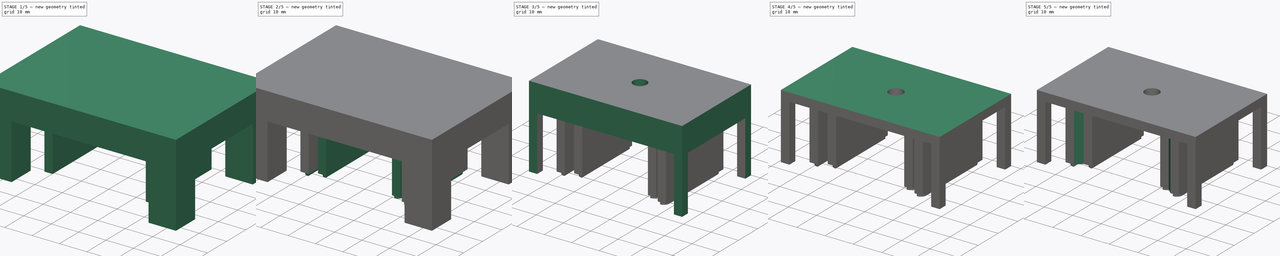
[diagram: build sequence overview — one tinted view per stage of 5, left to right]
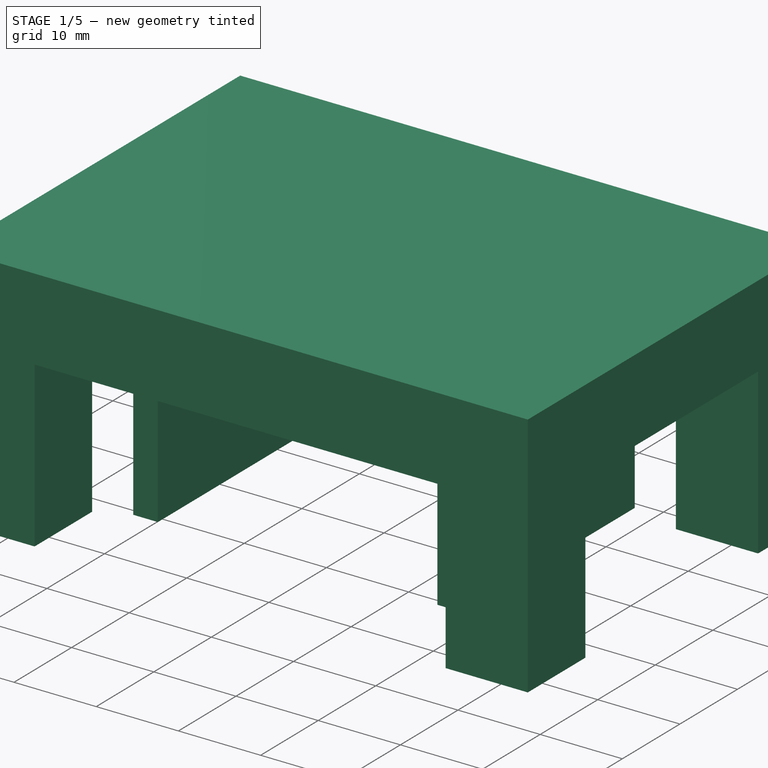
[diagram: stage 1 of 5 — iso view after this stage's code; geometry added in this stage tinted green]
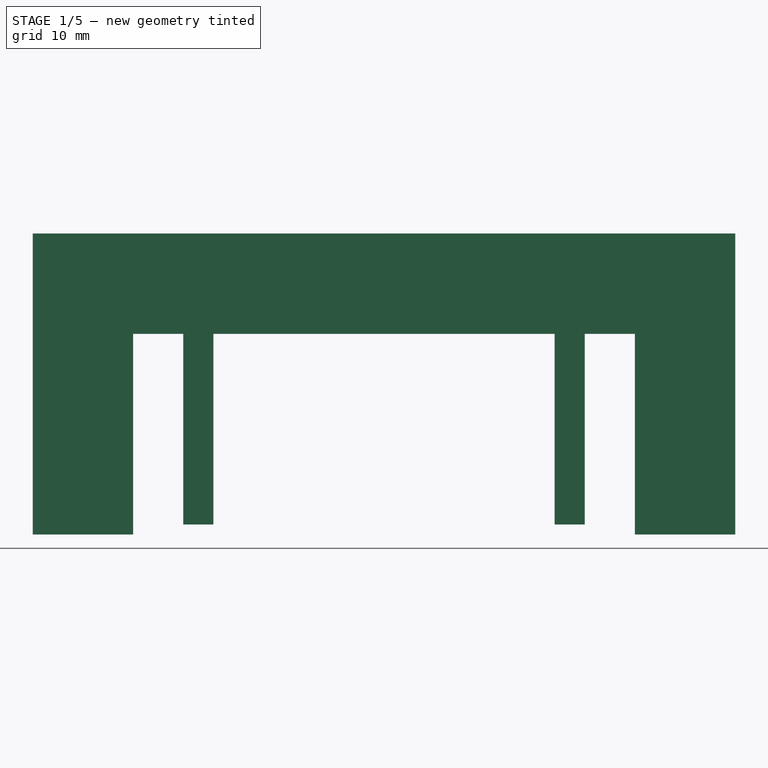
[diagram: stage 1 of 5 — front view after this stage's code; geometry added in this stage tinted green]
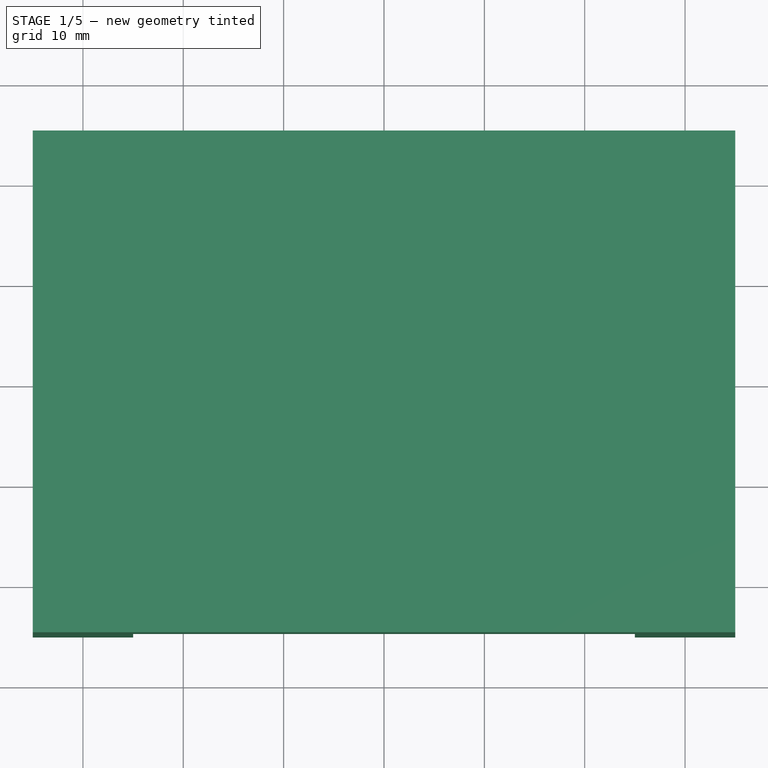
[diagram: stage 1 of 5 — top view after this stage's code; geometry added in this stage tinted green]
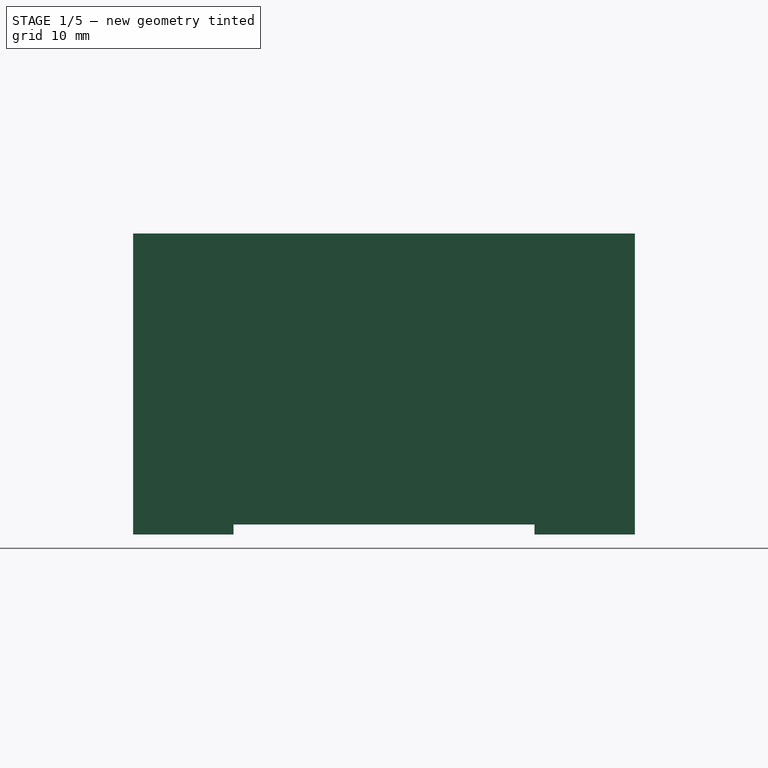
[diagram: stage 1 of 5 — right view after this stage's code; geometry added in this stage tinted green]
FCSTD DOCUMENT  (FreeCAD 0.19R)
Label: internal-flooding-sensor
License: All rights reserved
LicenseURL: http://en.wikipedia.org/wiki/All_rights_reserved
objects: Sketcher::SketchObject×15, PartDesign::Pad×6, PartDesign::Pocket×5, PartDesign::Fillet×2, PartDesign::Body×2, PartDesign::Revolution×1, Part::Loft×1, Part::Fuse×1, PartDesign::FeatureBase×1
note: 48 computed .brp shape members not serialized (recipe doc carries the construction recipe); baked Part::Feature solids carry a one-line shape summary decoded from their .brp

FEATURE [Sketcher::SketchObject] Sketch
  FullyConstrained = true
  MapMode = 5
  Support = -> [XY_Plane]
  sketch-geometry (4):
    g0: LineSegment StartX=-35 StartY=25 StartZ=0 EndX=35 EndY=25 EndZ=0
    g1: LineSegment StartX=35 StartY=25 StartZ=0 EndX=35 EndY=-25 EndZ=0
    g2: LineSegment StartX=35 StartY=-25 StartZ=0 EndX=-35 EndY=-25 EndZ=0
    g3: LineSegment StartX=-35 StartY=-25 StartZ=0 EndX=-35 EndY=25 EndZ=0
  constraints (11):
    c: Coincident(g0,g1)
    c: Coincident(g1,g2)
    c: Coincident(g2,g3)
    c: Coincident(g3,g0)
    c: Horizontal(g0)
    c: Horizontal(g2)
    c: Vertical(g1)
    c: Vertical(g3)
    c: Symmetric(g0,g1,g-1)
    c: DistanceY(g1,g1) = 50
    c: DistanceX(g0,g0) = 70
FEATURE [PartDesign::Pad] Pad
  Direction = (1,1,1)
  Length = 30
  Length2 = 100
  Profile = -> Sketch
  Type = 0
FEATURE [Sketcher::SketchObject] Sketch001
  ExternalGeometry = -> [Pad]
  FullyConstrained = true
  MapMode = 5
  Placement = pos=(0,0,0) rot=(1,0,0;3.14159rad)
  Support = -> [Pad]
  sketch-geometry (12):
    g0: LineSegment StartX=-35 StartY=15 StartZ=0 EndX=-25 EndY=15 EndZ=0
    g1: LineSegment StartX=-25 StartY=15 StartZ=0 EndX=-25 EndY=25 EndZ=0
    g2: LineSegment StartX=-25 StartY=25 StartZ=0 EndX=25 EndY=25 EndZ=0
    g3: LineSegment StartX=25 StartY=25 StartZ=0 EndX=25 EndY=15 EndZ=0
    g4: LineSegment StartX=25 StartY=15 StartZ=0 EndX=35 EndY=15 EndZ=0
    g5: LineSegment StartX=35 StartY=15 StartZ=0 EndX=35 EndY=-15 EndZ=0
    g6: LineSegment StartX=35 StartY=-15 StartZ=0 EndX=25 EndY=-15 EndZ=0
    g7: LineSegment StartX=25 StartY=-15 StartZ=0 EndX=25 EndY=-25 EndZ=0
    g8: LineSegment StartX=25 StartY=-25 StartZ=0 EndX=-25 EndY=-25 EndZ=0
    g9: LineSegment StartX=-25 StartY=-25 StartZ=0 EndX=-25 EndY=-15 EndZ=0
    g10: LineSegment StartX=-25 StartY=-15 StartZ=0 EndX=-35 EndY=-15 EndZ=0
    g11: LineSegment StartX=-35 StartY=-15 StartZ=0 EndX=-35 EndY=15 EndZ=0
  constraints (36):
    c: Horizontal(g0)
    c: Coincident(g0,g1)
    c: PointOnObject(g1,g-3)
    c: Vertical(g1)
    c: Coincident(g1,g2)
    c: PointOnObject(g2,g-3)
    c: Coincident(g2,g3)
    c: Vertical(g3)
    c: Coincident(g3,g4)
    c: Horizontal(g4)
    c: Coincident(g4,g5)
    c: Vertical(g5)
    c: Coincident(g5,g6)
    c: Horizontal(g6)
    c: Coincident(g6,g7)
    c: PointOnObject(g7,g-4)
    c: Coincident(g7,g8)
    c: PointOnObject(g8,g-4)
    c: Coincident(g8,g9)
    c: Vertical(g9)
    c: Coincident(g9,g10)
    c: Horizontal(g10)
    c: Coincident(g10,g11)
    c: Coincident(g11,g0)
    c: Vertical(g11)
    c: PointOnObject(g0,g-5)
    c: PointOnObject(g4,g-6)
    c: Equal(g0,g1)
    c: Equal(g0,g10)
    c: Equal(g10,g9)
    c: Equal(g9,g7)
    c: Equal(g7,g6)
    c: Equal(g6,g4)
    c: Equal(g4,g3)
    c: Vertical(g7)
    c: DistanceX(g0,g0) = 10
FEATURE [PartDesign::Pocket] Pocket
  BaseFeature = -> Pad
  Length = 20
  Length2 = 100
  Profile = -> Sketch001
  Type = 0
FEATURE [Sketcher::SketchObject] Sketch002
  ExternalGeometry = -> [Pocket]
  FullyConstrained = true
  MapMode = 5
  Placement = pos=(0,0,20) rot=(1,0,0;3.14159rad)
  Support = -> [Pocket]
  sketch-geometry (8):
    g0: LineSegment StartX=-20 StartY=15 StartZ=0 EndX=-17 EndY=15 EndZ=0
    g1: LineSegment StartX=-17 StartY=15 StartZ=0 EndX=-17 EndY=-15 EndZ=0
    g2: LineSegment StartX=-17 StartY=-15 StartZ=0 EndX=-20 EndY=-15 EndZ=0
    g3: LineSegment StartX=-20 StartY=-15 StartZ=0 EndX=-20 EndY=15 EndZ=0
    g4: LineSegment StartX=17 StartY=15 StartZ=0 EndX=20 EndY=15 EndZ=0
    g5: LineSegment StartX=20 StartY=15 StartZ=0 EndX=20 EndY=-15 EndZ=0
    g6: LineSegment StartX=20 StartY=-15 StartZ=0 EndX=17 EndY=-15 EndZ=0
    g7: LineSegment StartX=17 StartY=-15 StartZ=0 EndX=17 EndY=15 EndZ=0
  constraints (22):
    c: Coincident(g0,g1)
    c: Coincident(g1,g2)
    c: Coincident(g2,g3)
    c: Coincident(g3,g0)
    c: Horizontal(g0)
    c: Horizontal(g2)
    c: Vertical(g1)
    c: Coincident(g4,g5)
    c: Coincident(g5,g6)
    c: Coincident(g6,g7)
    c: Coincident(g7,g4)
    c: Horizontal(g4)
    c: Horizontal(g6)
    c: Vertical(g5)
    c: Vertical(g7)
    c: Equal(g0,g4)
    c: Equal(g1,g7)
    c: Symmetric(g0,g2,g-1)
    c: Symmetric(g0,g4,g-2)
    c: PointOnObject(g0,g-3)
    c: DistanceX(g-3,g0) = 5
    c: DistanceX(g0,g0) = 3
FEATURE [PartDesign::Pad] Pad001
  BaseFeature = -> Pocket
  Direction = (1,1,1)
  Length = 19
  Length2 = 100
  Profile = -> Sketch002
  Type = 0
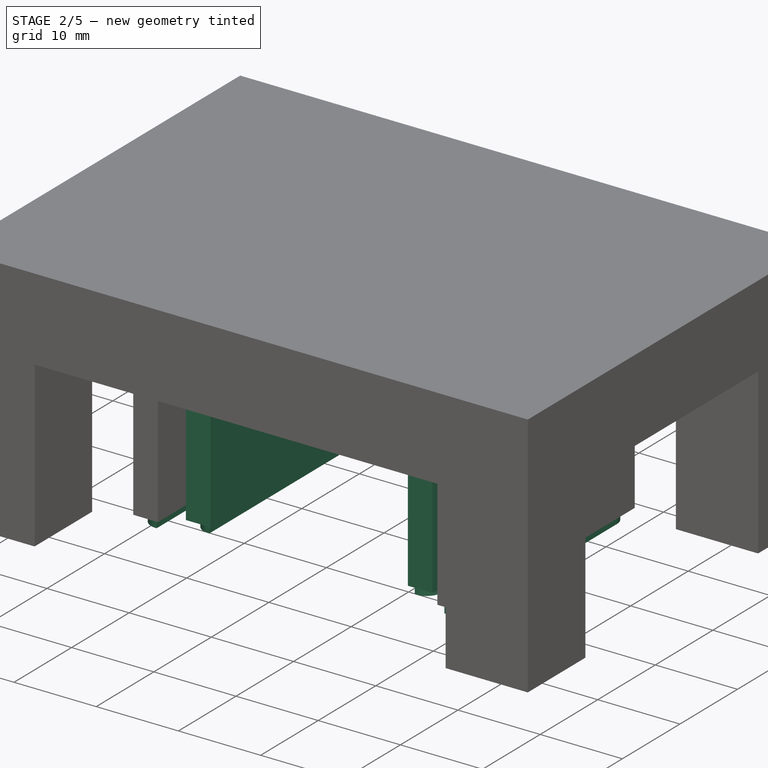
[diagram: stage 2 of 5 — iso view after this stage's code; geometry added in this stage tinted green]
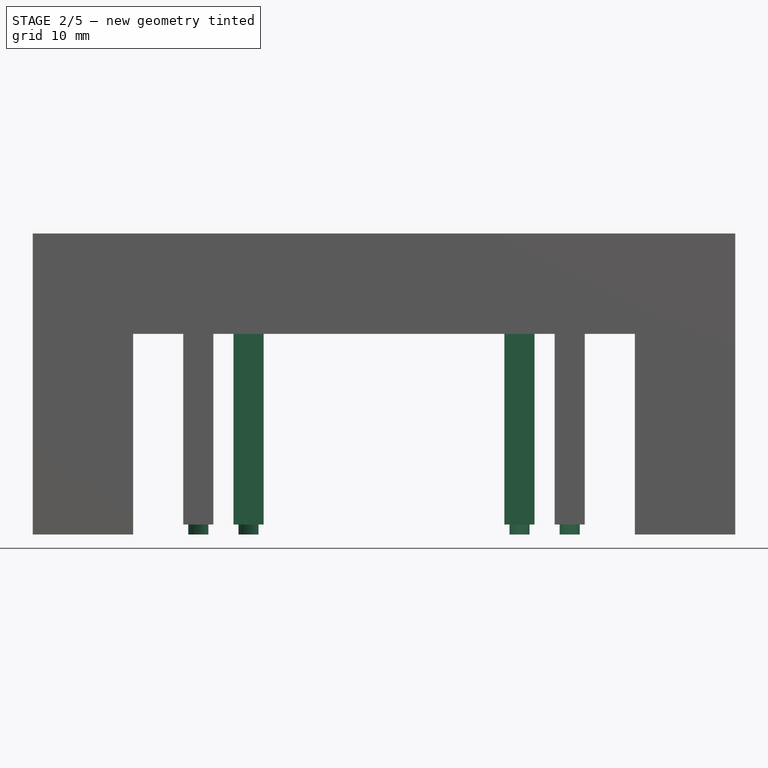
[diagram: stage 2 of 5 — front view after this stage's code; geometry added in this stage tinted green]
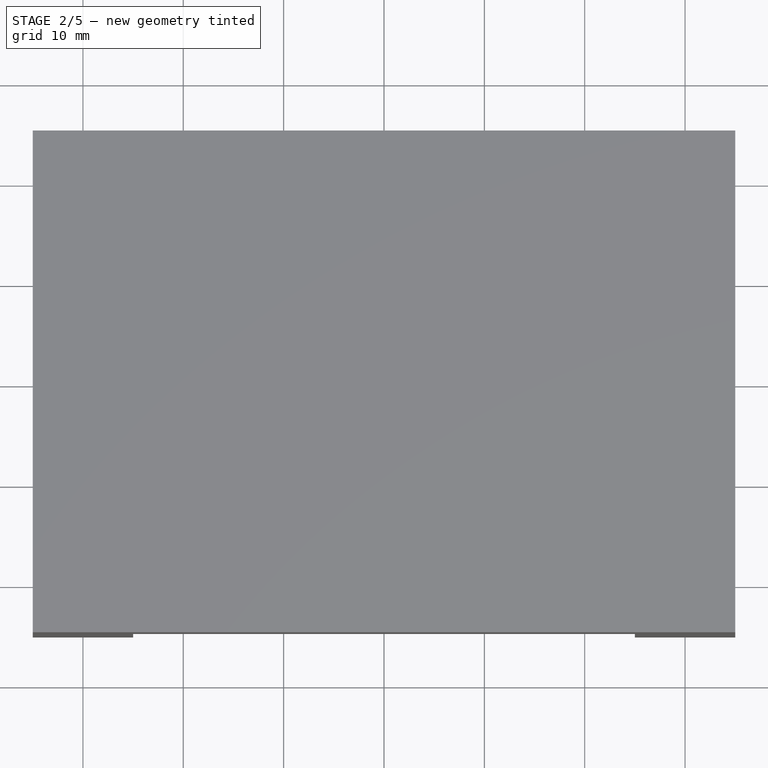
[diagram: stage 2 of 5 — top view after this stage's code; geometry added in this stage tinted green]
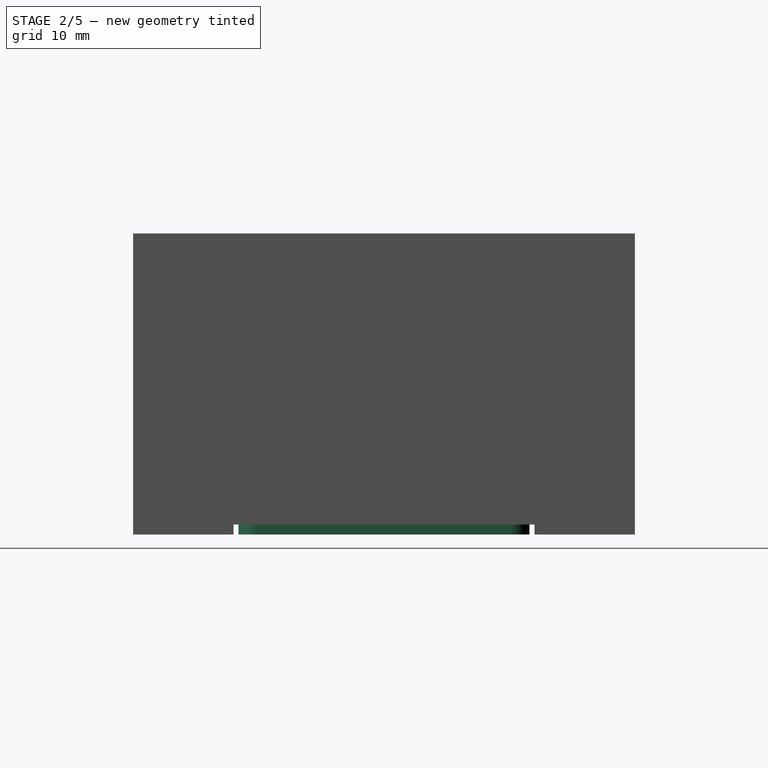
[diagram: stage 2 of 5 — right view after this stage's code; geometry added in this stage tinted green]
FEATURE [Sketcher::SketchObject] Sketch003
  ExternalGeometry = -> [Pad001]
  FullyConstrained = true
  MapMode = 5
  Placement = pos=(0,0,20) rot=(1,0,0;3.14159rad)
  Support = -> [Pad001]
  sketch-geometry (8):
    g0: LineSegment StartX=15 StartY=13 StartZ=0 EndX=12 EndY=13 EndZ=0
    g1: LineSegment StartX=12 StartY=13 StartZ=0 EndX=12 EndY=-13 EndZ=0
    g2: LineSegment StartX=12 StartY=-13 StartZ=0 EndX=15 EndY=-13 EndZ=0
    g3: LineSegment StartX=15 StartY=-13 StartZ=0 EndX=15 EndY=13 EndZ=0
    g4: LineSegment StartX=-15 StartY=13 StartZ=0 EndX=-12 EndY=13 EndZ=0
    g5: LineSegment StartX=-12 StartY=13 StartZ=0 EndX=-12 EndY=-13 EndZ=0
    g6: LineSegment StartX=-12 StartY=-13 StartZ=0 EndX=-15 EndY=-13 EndZ=0
    g7: LineSegment StartX=-15 StartY=-13 StartZ=0 EndX=-15 EndY=13 EndZ=0
  constraints (22):
    c: Coincident(g0,g1)
    c: Coincident(g1,g2)
    c: Coincident(g2,g3)
    c: Coincident(g3,g0)
    c: Horizontal(g0)
    c: Horizontal(g2)
    c: Vertical(g1)
    c: Coincident(g4,g5)
    c: Coincident(g5,g6)
    c: Coincident(g6,g7)
    c: Coincident(g7,g4)
    c: Horizontal(g4)
    c: Horizontal(g6)
    c: Vertical(g5)
    c: Vertical(g7)
    c: Equal(g0,g4)
    c: Equal(g1,g7)
    c: Symmetric(g2,g0,g-1)
    c: Equal(g-4,g0)
    c: DistanceX(g-5,g0) = -5
    c: DistanceY(g0,g-5) = 2
    c: Symmetric(g4,g0,g-2)
FEATURE [PartDesign::Pad] Pad002
  BaseFeature = -> Pad001
  Direction = (1,1,1)
  Length = 19
  Length2 = 100
  Profile = -> Sketch003
  Type = 0
FEATURE [Sketcher::SketchObject] Sketch004
  ExternalGeometry = -> [Pad002]
  FullyConstrained = true
  MapMode = 5
  Placement = pos=(0,0,1) rot=(1,0,0;3.14159rad)
  Support = -> [Pad002]
  sketch-geometry (8):
    g0: LineSegment StartX=19.5 StartY=-14.5 StartZ=0 EndX=17.5 EndY=-14.5 EndZ=0
    g1: LineSegment StartX=17.5 StartY=-14.5 StartZ=0 EndX=17.5 EndY=14.5 EndZ=0
    g2: LineSegment StartX=17.5 StartY=14.5 StartZ=0 EndX=19.5 EndY=14.5 EndZ=0
    g3: LineSegment StartX=19.5 StartY=14.5 StartZ=0 EndX=19.5 EndY=-14.5 EndZ=0
    g4: LineSegment StartX=-17.5 StartY=-14.5 StartZ=0 EndX=-19.5 EndY=-14.5 EndZ=0
    g5: LineSegment StartX=-19.5 StartY=-14.5 StartZ=0 EndX=-19.5 EndY=14.5 EndZ=0
    g6: LineSegment StartX=-19.5 StartY=14.5 StartZ=0 EndX=-17.5 EndY=14.5 EndZ=0
    g7: LineSegment StartX=-17.5 StartY=14.5 StartZ=0 EndX=-17.5 EndY=-14.5 EndZ=0
  constraints (22):
    c: Coincident(g0,g1)
    c: Coincident(g1,g2)
    c: Coincident(g2,g3)
    c: Coincident(g3,g0)
    c: Horizontal(g0)
    c: Horizontal(g2)
    c: Vertical(g1)
    c: Coincident(g4,g5)
    c: Coincident(g5,g6)
    c: Coincident(g6,g7)
    c: Coincident(g7,g4)
    c: Horizontal(g4)
    c: Horizontal(g6)
    c: Vertical(g5)
    c: Vertical(g7)
    c: Symmetric(g0,g2,g-1)
    c: Symmetric(g0,g4,g-2)
    c: Equal(g0,g4)
    c: Equal(g1,g7)
    c: DistanceX(g-5,g5) = 0.5
    c: DistanceX(g-6,g6) = -0.5
    c: DistanceY(g5,g-5) = 0.5
FEATURE [PartDesign::Pad] Pad003
  BaseFeature = -> Pad002
  Direction = (1,1,1)
  Length = 1
  Length2 = 100
  Profile = -> Sketch004
  Type = 0
FEATURE [Sketcher::SketchObject] Sketch005
  ExternalGeometry = -> [Pad003]
  FullyConstrained = true
  MapMode = 5
  Placement = pos=(0,0,1) rot=(1,0,0;3.14159rad)
  Support = -> [Pad003]
  sketch-geometry (8):
    g0: LineSegment StartX=-14.5 StartY=12.5 StartZ=0 EndX=-12.5 EndY=12.5 EndZ=0
    g1: LineSegment StartX=-12.5 StartY=12.5 StartZ=0 EndX=-12.5 EndY=-12.5 EndZ=0
    g2: LineSegment StartX=-12.5 StartY=-12.5 StartZ=0 EndX=-14.5 EndY=-12.5 EndZ=0
    g3: LineSegment StartX=-14.5 StartY=-12.5 StartZ=0 EndX=-14.5 EndY=12.5 EndZ=0
    g4: LineSegment StartX=12.5 StartY=12.5 StartZ=0 EndX=14.5 EndY=12.5 EndZ=0
    g5: LineSegment StartX=14.5 StartY=12.5 StartZ=0 EndX=14.5 EndY=-12.5 EndZ=0
    g6: LineSegment StartX=14.5 StartY=-12.5 StartZ=0 EndX=12.5 EndY=-12.5 EndZ=0
    g7: LineSegment StartX=12.5 StartY=-12.5 StartZ=0 EndX=12.5 EndY=12.5 EndZ=0
  constraints (22):
    c: Coincident(g0,g1)
    c: Coincident(g1,g2)
    c: Coincident(g2,g3)
    c: Coincident(g3,g0)
    c: Horizontal(g0)
    c: Horizontal(g2)
    c: Vertical(g1)
    c: Coincident(g4,g5)
    c: Coincident(g5,g6)
    c: Coincident(g6,g7)
    c: Coincident(g7,g4)
    c: Horizontal(g4)
    c: Horizontal(g6)
    c: Vertical(g5)
    c: Vertical(g7)
    c: DistanceX(g-3,g0) = 0.5
    c: DistanceX(g-3,g0) = -0.5
    c: DistanceY(g0,g-3) = 0.5
    c: Equal(g4,g0)
    c: Equal(g7,g1)
    c: Symmetric(g0,g4,g-2)
    c: Symmetric(g0,g2,g-1)
FEATURE [PartDesign::Pad] Pad004
  BaseFeature = -> Pad003
  Direction = (1,1,1)
  Length = 1
  Length2 = 100
  Profile = -> Sketch005
  Type = 0
FEATURE [PartDesign::Fillet] Fillet
  Base = -> Pad004 [Edge114,Edge134,Edge116,Edge129,Edge137,Edge124,Edge126,Edge142]
  BaseFeature = -> Pad004
  Radius = 1.9
  SupportTransform = false
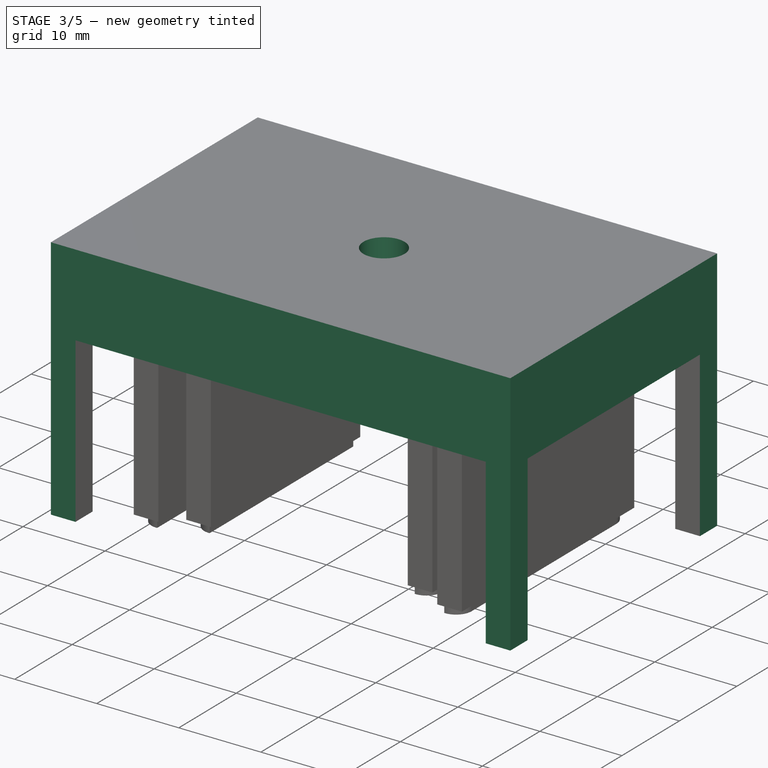
[diagram: stage 3 of 5 — iso view after this stage's code; geometry added in this stage tinted green]
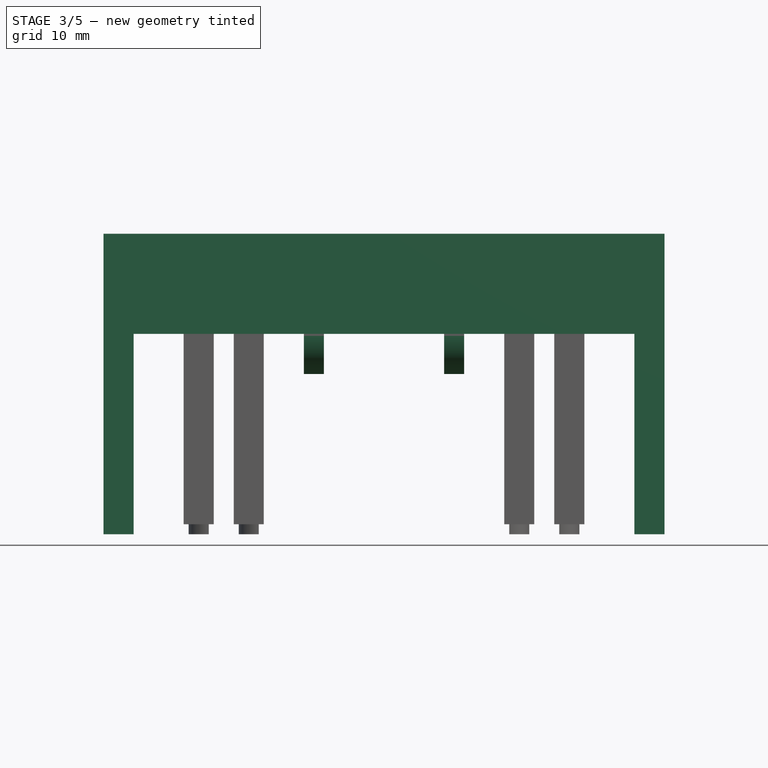
[diagram: stage 3 of 5 — front view after this stage's code; geometry added in this stage tinted green]
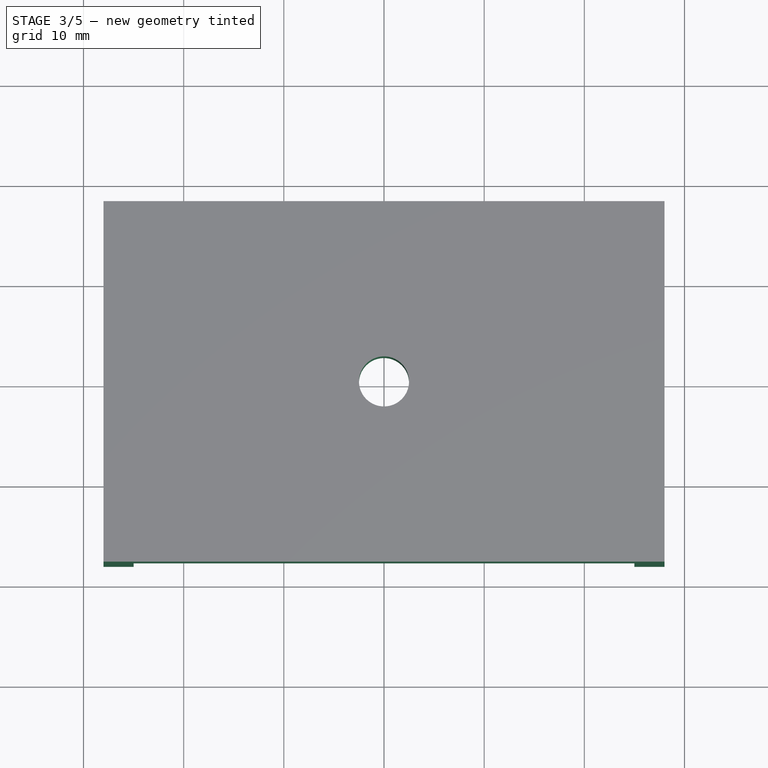
[diagram: stage 3 of 5 — top view after this stage's code; geometry added in this stage tinted green]
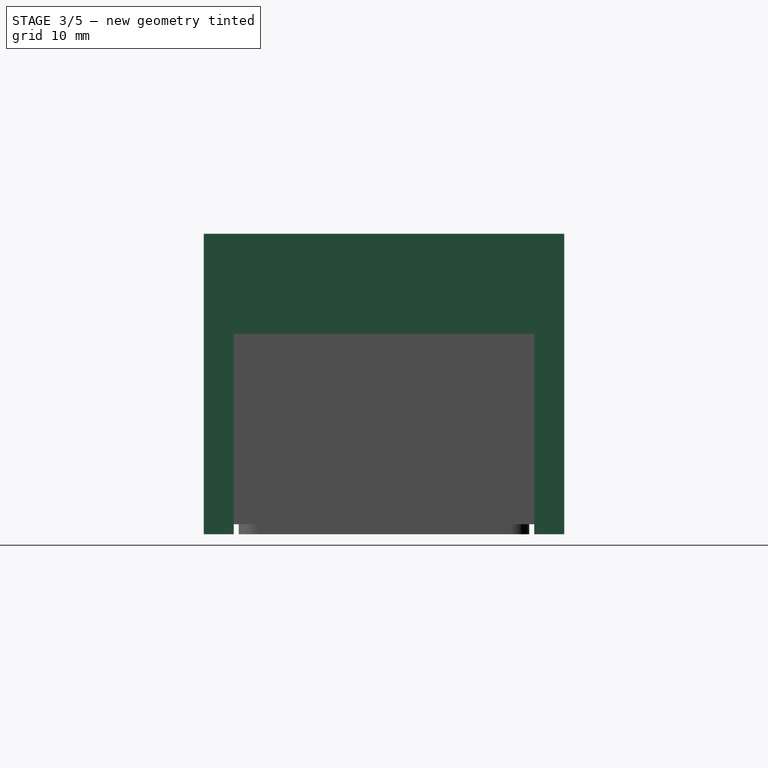
[diagram: stage 3 of 5 — right view after this stage's code; geometry added in this stage tinted green]
FEATURE [Sketcher::SketchObject] Sketch006
  FullyConstrained = true
  MapMode = 5
  Placement = pos=(0,0,20) rot=(1,0,0;3.14159rad)
  Support = -> [Fillet]
  sketch-geometry (1):
    g0: Circle CenterX=0 CenterY=0 CenterZ=0 NormalX=0 NormalY=0 NormalZ=1 AngleXU=0 Radius=2.5
  constraints (2):
    c: Coincident(g0,g-1)
    c: Diameter(g0) = 5
FEATURE [PartDesign::Pocket] Pocket001
  BaseFeature = -> Fillet
  Length = 12
  Length2 = 100
  Profile = -> Sketch006
  Type = 0
FEATURE [Sketcher::SketchObject] Sketch007
  FullyConstrained = true
  MapMode = 5
  Placement = pos=(0,0,20) rot=(1,0,0;3.14159rad)
  Support = -> [Pocket001]
  sketch-geometry (8):
    g0: LineSegment StartX=-8 StartY=4 StartZ=0 EndX=-6 EndY=4 EndZ=0
    g1: LineSegment StartX=-6 StartY=4 StartZ=0 EndX=-6 EndY=2 EndZ=0
    g2: LineSegment StartX=-6 StartY=2 StartZ=0 EndX=-8 EndY=2 EndZ=0
    g3: LineSegment StartX=-8 StartY=2 StartZ=0 EndX=-8 EndY=4 EndZ=0
    g4: LineSegment StartX=6 StartY=4 StartZ=0 EndX=8 EndY=4 EndZ=0
    g5: LineSegment StartX=8 StartY=4 StartZ=0 EndX=8 EndY=2 EndZ=0
    g6: LineSegment StartX=8 StartY=2 StartZ=0 EndX=6 EndY=2 EndZ=0
    g7: LineSegment StartX=6 StartY=2 StartZ=0 EndX=6 EndY=4 EndZ=0
  constraints (23):
    c: Coincident(g0,g1)
    c: Coincident(g1,g2)
    c: Coincident(g2,g3)
    c: Coincident(g3,g0)
    c: Horizontal(g0)
    c: Horizontal(g2)
    c: Vertical(g1)
    c: Vertical(g3)
    c: Coincident(g4,g5)
    c: Coincident(g5,g6)
    c: Coincident(g6,g7)
    c: Coincident(g7,g4)
    c: Horizontal(g4)
    c: Horizontal(g6)
    c: Vertical(g5)
    c: Vertical(g7)
    c: Equal(g0,g1)
    c: Equal(g1,g7)
    c: Equal(g7,g4)
    c: Symmetric(g1,g6,g-2)
    c: DistanceY(g-1,g1) = 2
    c: DistanceX(g0,g0) = 2
    c: DistanceX(g1,g-1) = 6
FEATURE [Sketcher::SketchObject] Sketch008
  FullyConstrained = true
  MapMode = 5
  Placement = pos=(0,0,20) rot=(1,0,0;3.14159rad)
  Support = -> [Pocket001]
  sketch-geometry (1):
    g0: LineSegment StartX=-10 StartY=0 StartZ=0 EndX=10 EndY=0 EndZ=0
  constraints (3):
    c: PointOnObject(g0,g-1)
    c: Symmetric(g0,g0,g-2)
    c: DistanceX(g0,g0) = 20
FEATURE [PartDesign::Revolution] Revolution
  Angle = 360
  Axis = (1,0,0)
  Base = (-10,0,20)
  BaseFeature = -> Pocket001
  Profile = -> Sketch007
  ReferenceAxis = -> Sketch008 [Edge1]
FEATURE [Sketcher::SketchObject] Sketch009
  ExternalGeometry = -> [Revolution]
  FullyConstrained = true
  MapMode = 5
  Placement = pos=(0,0,30) rot=(0,0,1;0rad)
  Support = -> [Revolution]
  sketch-geometry (8):
    g0: LineSegment StartX=-40 StartY=40 StartZ=0 EndX=40 EndY=40 EndZ=0
    g1: LineSegment StartX=40 StartY=40 StartZ=0 EndX=40 EndY=-40 EndZ=0
    g2: LineSegment StartX=40 StartY=-40 StartZ=0 EndX=-40 EndY=-40 EndZ=0
    g3: LineSegment StartX=-40 StartY=-40 StartZ=0 EndX=-40 EndY=40 EndZ=0
    g4: LineSegment StartX=-28 StartY=18 StartZ=0 EndX=28 EndY=18 EndZ=0
    g5: LineSegment StartX=28 StartY=18 StartZ=0 EndX=28 EndY=-18 EndZ=0
    g6: LineSegment StartX=28 StartY=-18 StartZ=0 EndX=-28 EndY=-18 EndZ=0
    g7: LineSegment StartX=-28 StartY=-18 StartZ=0 EndX=-28 EndY=18 EndZ=0
  constraints (21):
    c: Coincident(g0,g1)
    c: Coincident(g1,g2)
    c: Coincident(g2,g3)
    c: Coincident(g3,g0)
    c: Horizontal(g2)
    c: Vertical(g3)
    c: Coincident(g4,g5)
    c: Coincident(g5,g6)
    c: Coincident(g6,g7)
    c: Coincident(g7,g4)
    c: Horizontal(g4)
    c: Horizontal(g6)
    c: Vertical(g5)
    c: Vertical(g7)
    c: DistanceX(g5,g-4) = 7
    c: DistanceY(g-4,g5) = 7
    c: DistanceX(g0,g0) = 80
    c: DistanceY(g1,g1) = 80
    c: Symmetric(g0,g1,g-1)
    c: Symmetric(g0,g0,g-2)
    c: Symmetric(g5,g4,g-1)
FEATURE [PartDesign::Pocket] Pocket002
  BaseFeature = -> Revolution
  Length = 40
  Length2 = 100
  Profile = -> Sketch009
  Type = 0
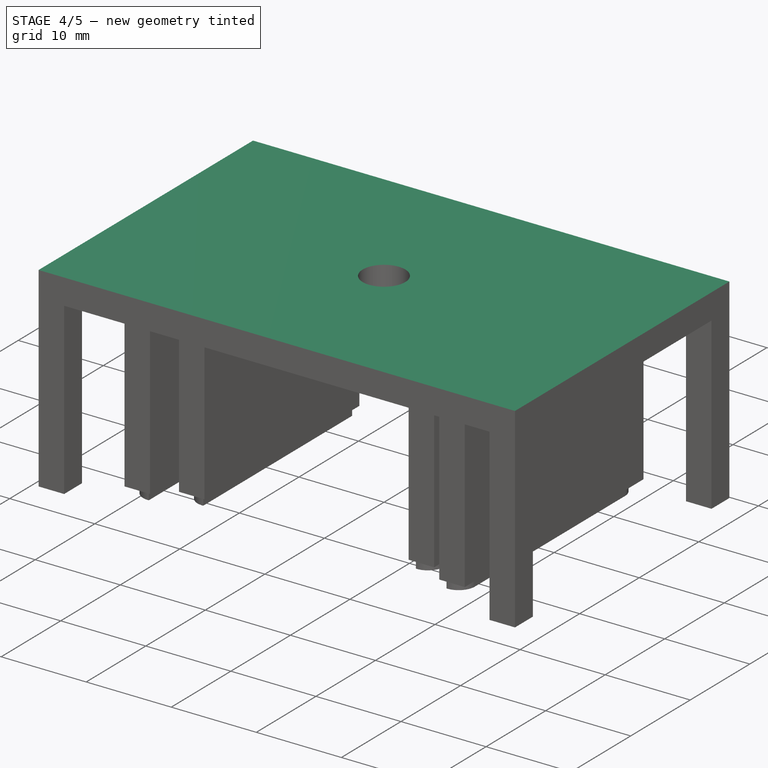
[diagram: stage 4 of 5 — iso view after this stage's code; geometry added in this stage tinted green]
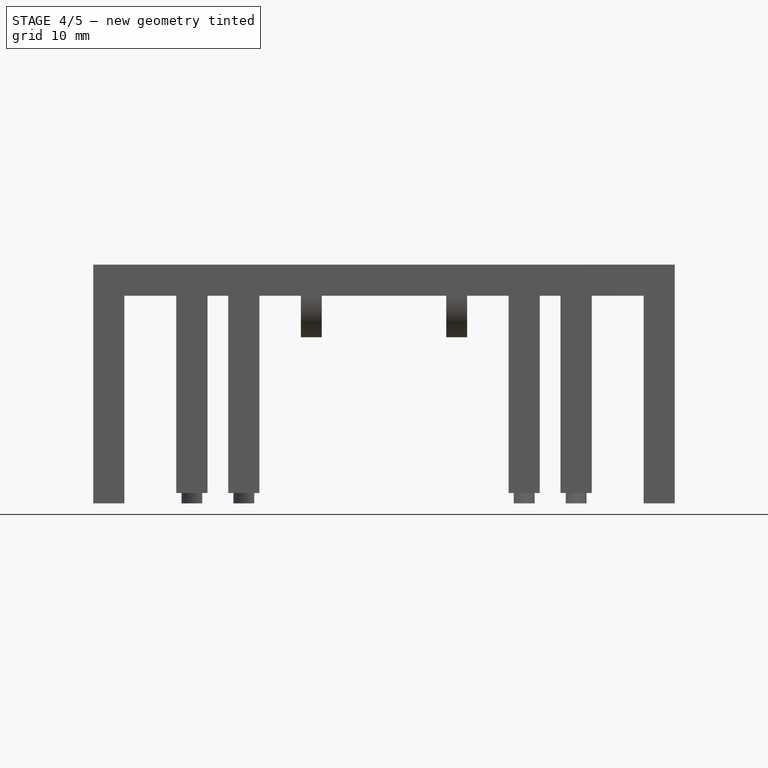
[diagram: stage 4 of 5 — front view after this stage's code; geometry added in this stage tinted green]
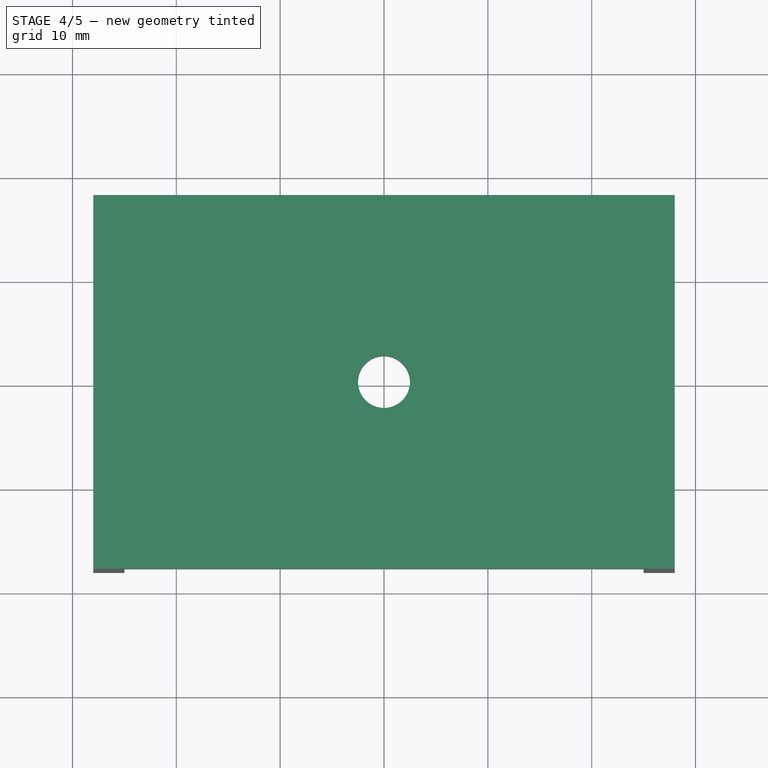
[diagram: stage 4 of 5 — top view after this stage's code; geometry added in this stage tinted green]
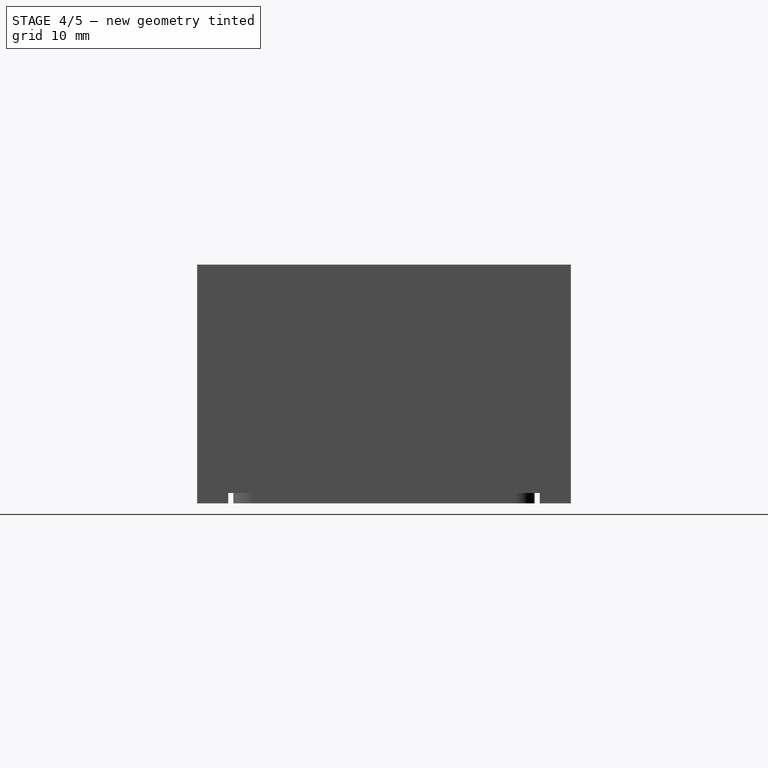
[diagram: stage 4 of 5 — right view after this stage's code; geometry added in this stage tinted green]
FEATURE [Sketcher::SketchObject] Sketch010
  FullyConstrained = true
  MapMode = 5
  Placement = pos=(0,0,30) rot=(0,0,1;0rad)
  Support = -> [Pocket002]
  sketch-geometry (4):
    g0: LineSegment StartX=-40 StartY=40 StartZ=0 EndX=40 EndY=40 EndZ=0
    g1: LineSegment StartX=40 StartY=40 StartZ=0 EndX=40 EndY=-40 EndZ=0
    g2: LineSegment StartX=40 StartY=-40 StartZ=0 EndX=-40 EndY=-40 EndZ=0
    g3: LineSegment StartX=-40 StartY=-40 StartZ=0 EndX=-40 EndY=40 EndZ=0
  constraints (11):
    c: Coincident(g0,g1)
    c: Coincident(g1,g2)
    c: Coincident(g2,g3)
    c: Coincident(g3,g0)
    c: Horizontal(g0)
    c: Horizontal(g2)
    c: Vertical(g1)
    c: Vertical(g3)
    c: Symmetric(g0,g1,g-1)
    c: DistanceX(g0,g0) = 80
    c: DistanceY(g1,g1) = 80
FEATURE [PartDesign::Pocket] Pocket003
  BaseFeature = -> Pocket002
  Length = 7
  Length2 = 100
  Profile = -> Sketch010
  Type = 0
FEATURE [Sketcher::SketchObject] Sketch011
  FullyConstrained = true
  MapMode = 5
  Placement = pos=(0,13,0) rot=(0,0.707107,0.707107;3.14159rad)
  Support = -> [Pocket003]
  sketch-geometry (4):
    g0: LineSegment StartX=-15 StartY=15 StartZ=0 EndX=-12 EndY=15 EndZ=0
    g1: LineSegment StartX=-12 StartY=15 StartZ=0 EndX=-12 EndY=6 EndZ=0
    g2: LineSegment StartX=-12 StartY=6 StartZ=0 EndX=-15 EndY=6 EndZ=0
    g3: LineSegment StartX=-15 StartY=6 StartZ=0 EndX=-15 EndY=15 EndZ=0
  constraints (12):
    c: Coincident(g0,g1)
    c: Coincident(g1,g2)
    c: Coincident(g2,g3)
    c: Coincident(g3,g0)
    c: Horizontal(g0)
    c: Horizontal(g2)
    c: Vertical(g1)
    c: Vertical(g3)
    c: DistanceX(g0,g0) = 3
    c: DistanceY(g1,g1) = 9
    c: DistanceX(g1,g-1) = 12
    c: DistanceY(g-1,g1) = 6
FEATURE [Sketcher::SketchObject] Sketch012
  AttachmentOffset = pos=(0,0,5) rot=(0,0,1;0rad)
  ExternalGeometry = -> [Sketch011]
  FullyConstrained = true
  MapMode = 5
  Placement = pos=(0,18,-1.1e-15) rot=(0,0.707107,0.707107;3.14159rad)
  Support = -> [Pocket003]
  sketch-geometry (4):
    g0: LineSegment StartX=-15 StartY=12 StartZ=0 EndX=-12 EndY=12 EndZ=0
    g1: LineSegment StartX=-12 StartY=12 StartZ=0 EndX=-12 EndY=9 EndZ=0
    g2: LineSegment StartX=-12 StartY=9 StartZ=0 EndX=-15 EndY=9 EndZ=0
    g3: LineSegment StartX=-15 StartY=9 StartZ=0 EndX=-15 EndY=12 EndZ=0
  constraints (12):
    c: Coincident(g0,g1)
    c: Coincident(g1,g2)
    c: Coincident(g2,g3)
    c: Coincident(g3,g0)
    c: Horizontal(g0)
    c: Horizontal(g2)
    c: Vertical(g1)
    c: Vertical(g3)
    c: DistanceY(g-3,g1) = 3
    c: DistanceY(g1,g1) = 3
    c: Equal(g0,g-4)
    c: PointOnObject(g-4,g1)
FEATURE [PartDesign::Body] Body
  Group = -> [Sketch,Pad,Sketch001,Pocket,Sketch002,Pad001,Sketch003,Pad002,Sketch004,Pad003,Sketch005,Pad004,Fillet,Sketch006,Pocket001,Sketch007,Sketch008,Revolution,Sketch009,Pocket002,Sketch010,Pocket003,Sketch011,Sketch012]
  Origin = -> Origin
  Tip = -> Pocket003
FEATURE [Part::Loft] Loft
  Closed = false
  MaxDegree = 5
  Ruled = false
  Sections = -> [Sketch011,Sketch012]
  Solid = true
FEATURE [Part::Fuse] Fusion
  Base = -> Body
  Tool = -> Loft
FEATURE [PartDesign::FeatureBase] BaseFeature
  BaseFeature = -> Fusion
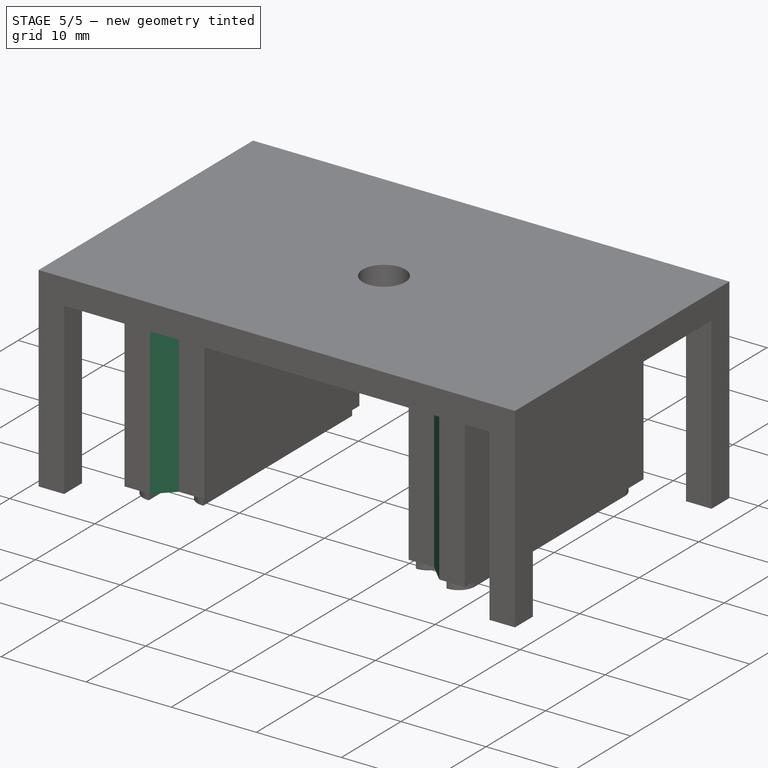
[diagram: stage 5 of 5 — iso view after this stage's code; geometry added in this stage tinted green]
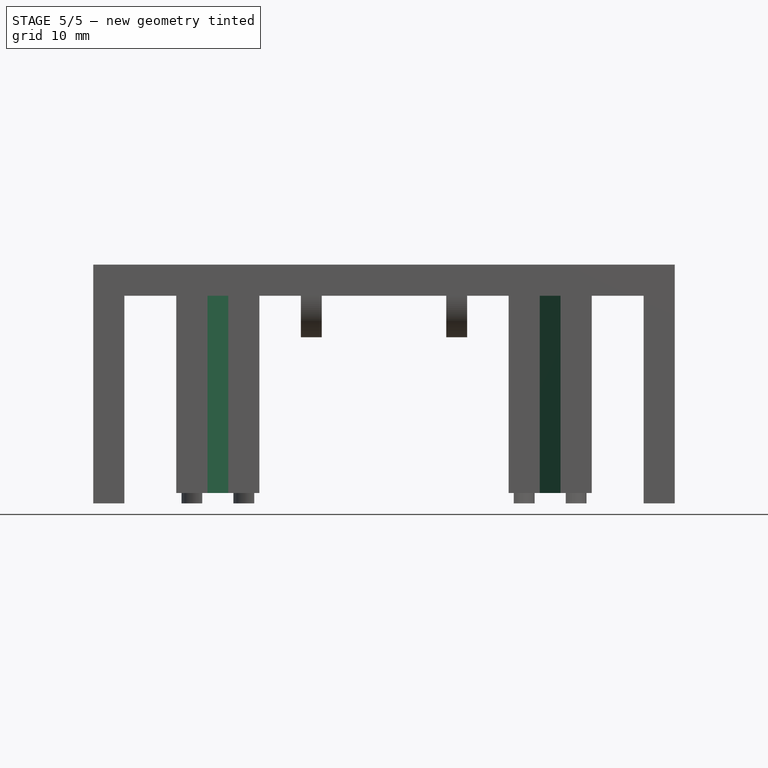
[diagram: stage 5 of 5 — front view after this stage's code; geometry added in this stage tinted green]
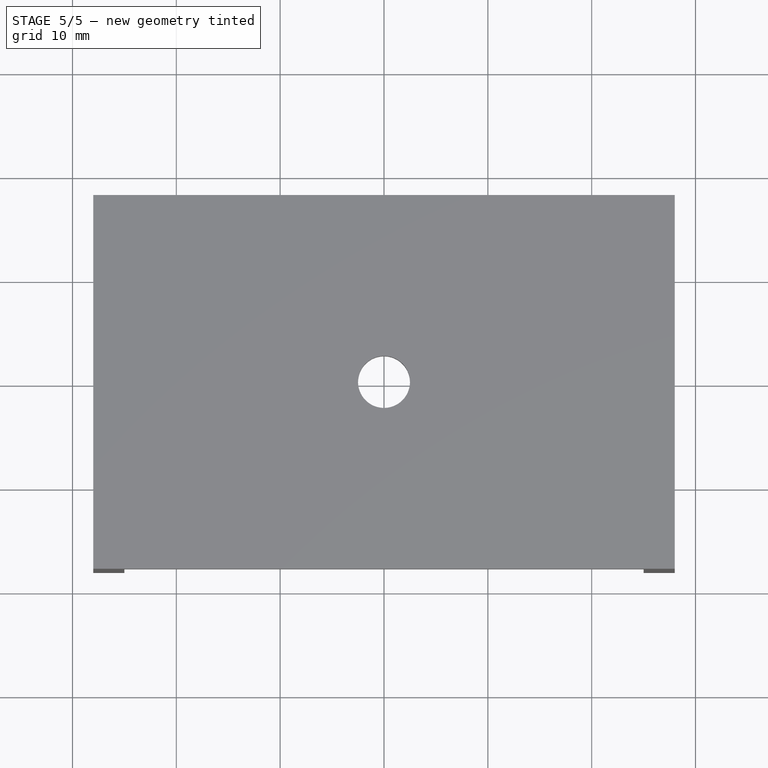
[diagram: stage 5 of 5 — top view after this stage's code; geometry added in this stage tinted green]
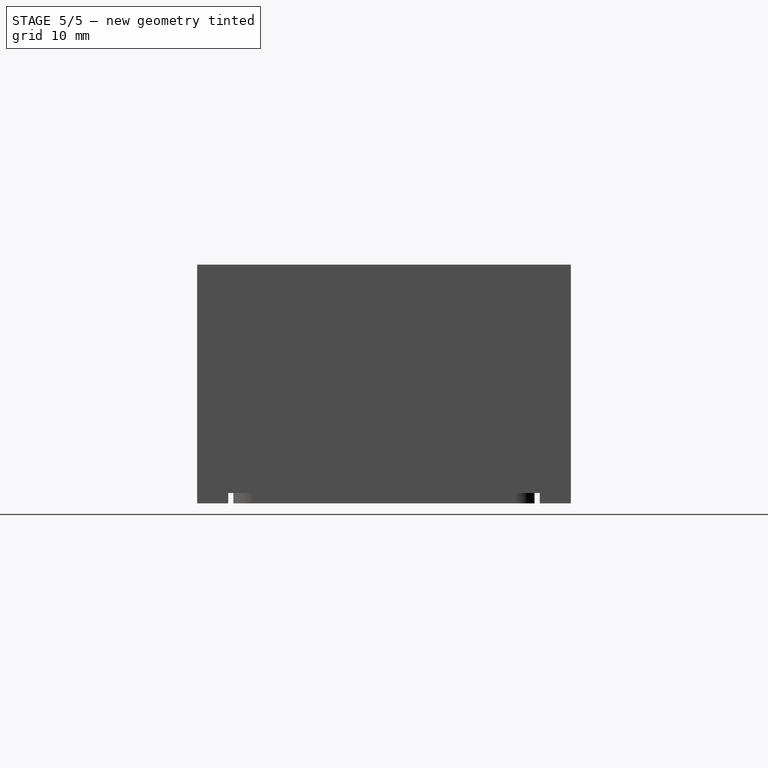
[diagram: stage 5 of 5 — right view after this stage's code; geometry added in this stage tinted green]
FEATURE [Sketcher::SketchObject] Sketch013
  ExternalGeometry = -> [BaseFeature]
  FullyConstrained = true
  MapMode = 5
  Placement = pos=(12,-8.5e-15,0) rot=(-0.57735,0.57735,0.57735;4.18879rad)
  Support = -> [BaseFeature]
  sketch-geometry (4):
    g0: LineSegment StartX=-16.5 StartY=11.5 StartZ=0 EndX=-14.5 EndY=11.5 EndZ=0
    g1: LineSegment StartX=-14.5 StartY=11.5 StartZ=0 EndX=-14.5 EndY=9.5 EndZ=0
    g2: LineSegment StartX=-14.5 StartY=9.5 StartZ=0 EndX=-16.5 EndY=9.5 EndZ=0
    g3: LineSegment StartX=-16.5 StartY=9.5 StartZ=0 EndX=-16.5 EndY=11.5 EndZ=0
  constraints (12):
    c: Coincident(g0,g1)
    c: Coincident(g1,g2)
    c: Coincident(g2,g3)
    c: Coincident(g3,g0)
    c: Horizontal(g0)
    c: Horizontal(g2)
    c: Vertical(g1)
    c: Vertical(g3)
    c: DistanceX(g-3,g0) = 1.5
    c: DistanceX(g0,g-3) = 1.5
    c: DistanceY(g0,g-3) = 0.5
    c: DistanceY(g-4,g2) = 0.5
FEATURE [PartDesign::Pocket] Pocket004
  BaseFeature = -> BaseFeature
  Length = 5
  Length2 = 100
  Profile = -> Sketch013
  Type = 0
FEATURE [PartDesign::Fillet] Fillet001
  Base = -> Pocket004 [Edge167,Edge186]
  BaseFeature = -> Pocket004
  Radius = 2
  SupportTransform = false
FEATURE [Sketcher::SketchObject] Sketch014
  ExternalGeometry = -> [Fillet001]
  FullyConstrained = true
  MapMode = 5
  Placement = pos=(0,0,20) rot=(1,0,0;3.14159rad)
  Support = -> [Fillet001]
  sketch-geometry (8):
    g0: LineSegment StartX=-17 StartY=15 StartZ=0 EndX=-15 EndY=13 EndZ=0
    g1: LineSegment StartX=-15 StartY=13 StartZ=0 EndX=-15 EndY=-13 EndZ=0
    g2: LineSegment StartX=-15 StartY=-13 StartZ=0 EndX=-17 EndY=-15 EndZ=0
    g3: LineSegment StartX=-17 StartY=-15 StartZ=0 EndX=-17 EndY=15 EndZ=0
    g4: LineSegment StartX=17 StartY=-15 StartZ=0 EndX=15 EndY=-13 EndZ=0
    g5: LineSegment StartX=15 StartY=-13 StartZ=0 EndX=15 EndY=13 EndZ=0
    g6: LineSegment StartX=15 StartY=13 StartZ=0 EndX=17 EndY=15 EndZ=0
    g7: LineSegment StartX=17 StartY=15 StartZ=0 EndX=17 EndY=-15 EndZ=0
  constraints (16):
    c: Coincident(g-3,g0)
    c: Coincident(g0,g-4)
    c: Coincident(g0,g1)
    c: Coincident(g1,g-4)
    c: Coincident(g1,g2)
    c: Coincident(g2,g-3)
    c: Coincident(g2,g3)
    c: Coincident(g3,g0)
    c: Coincident(g-6,g4)
    c: Coincident(g4,g-5)
    c: Coincident(g4,g5)
    c: Coincident(g5,g-5)
    c: Coincident(g5,g6)
    c: Coincident(g6,g-6)
    c: Coincident(g6,g7)
    c: Coincident(g7,g4)
FEATURE [PartDesign::Pad] Pad005
  BaseFeature = -> Fillet001
  Direction = (1,1,1)
  Length = 19
  Length2 = 100
  Profile = -> Sketch014
  Type = 0
FEATURE [PartDesign::Body] Body001
  BaseFeature = -> Fusion
  Group = -> [BaseFeature,Sketch013,Pocket004,Fillet001,Sketch014,Pad005]
  Origin = -> Origin001
  Tip = -> Pad005
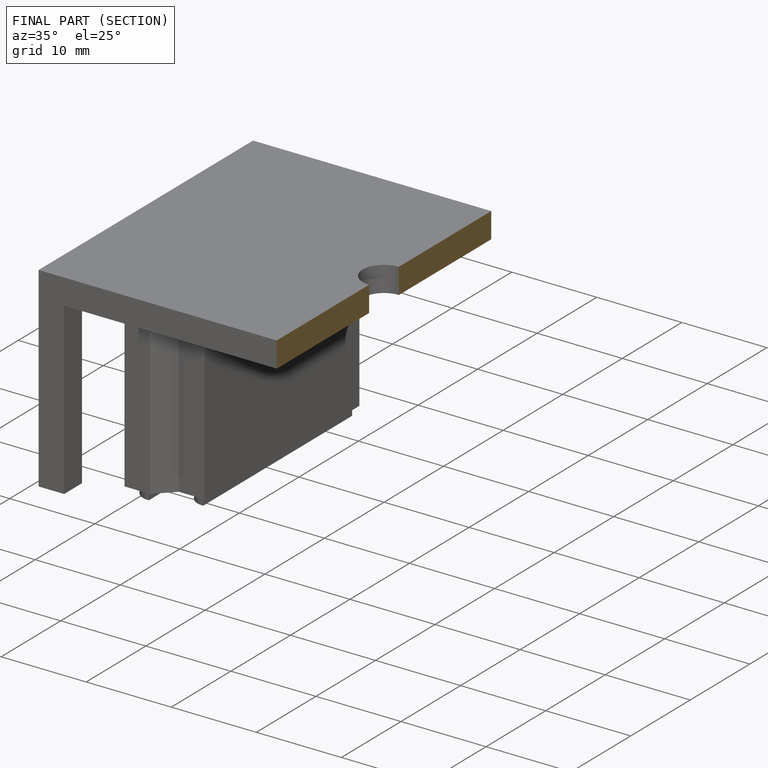
[diagram: finished part — half-section view (interior)]
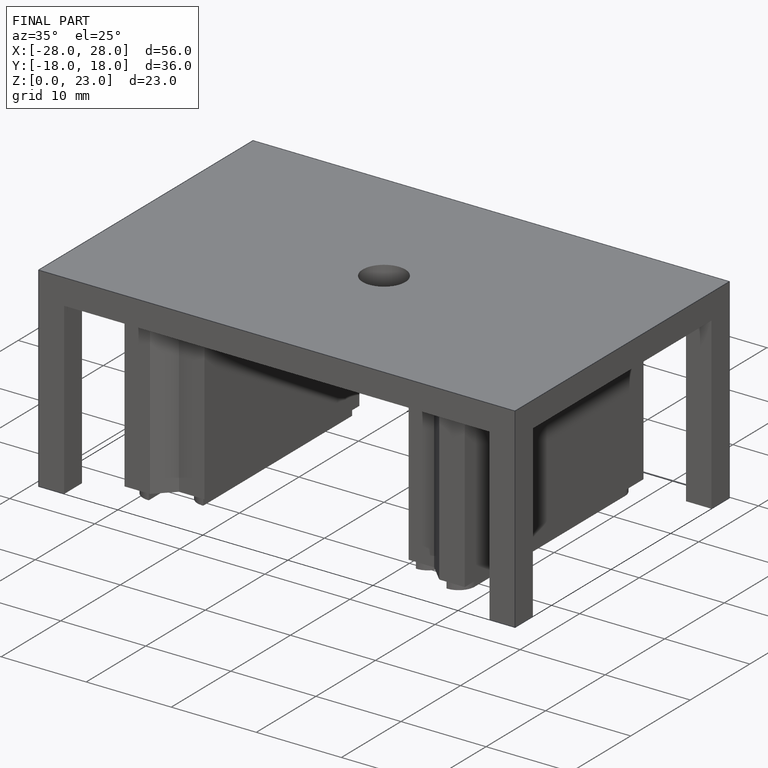
[diagram: finished part — iso view with bounding-box wireframe]
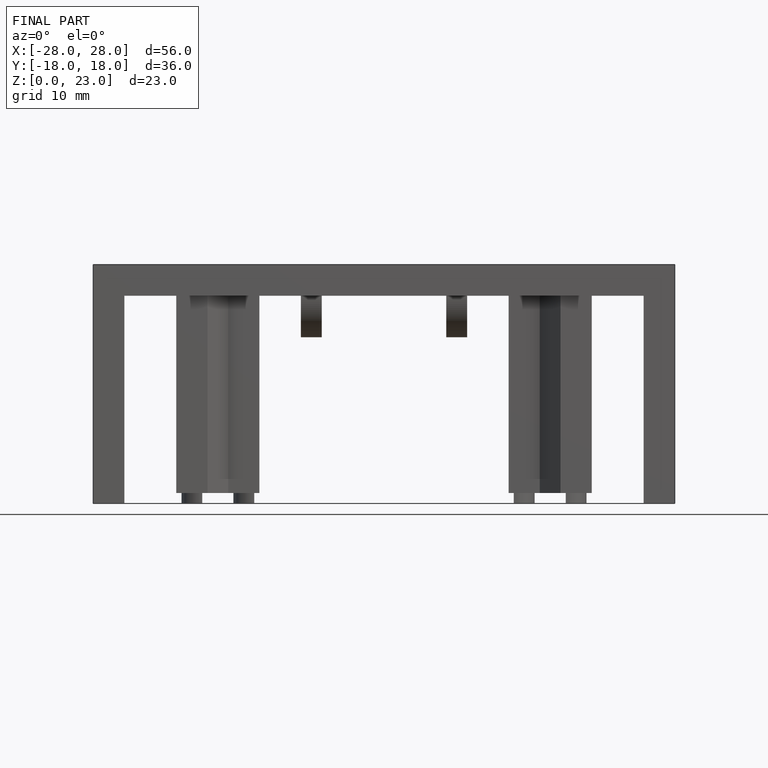
[diagram: finished part — front view with bounding-box wireframe]
